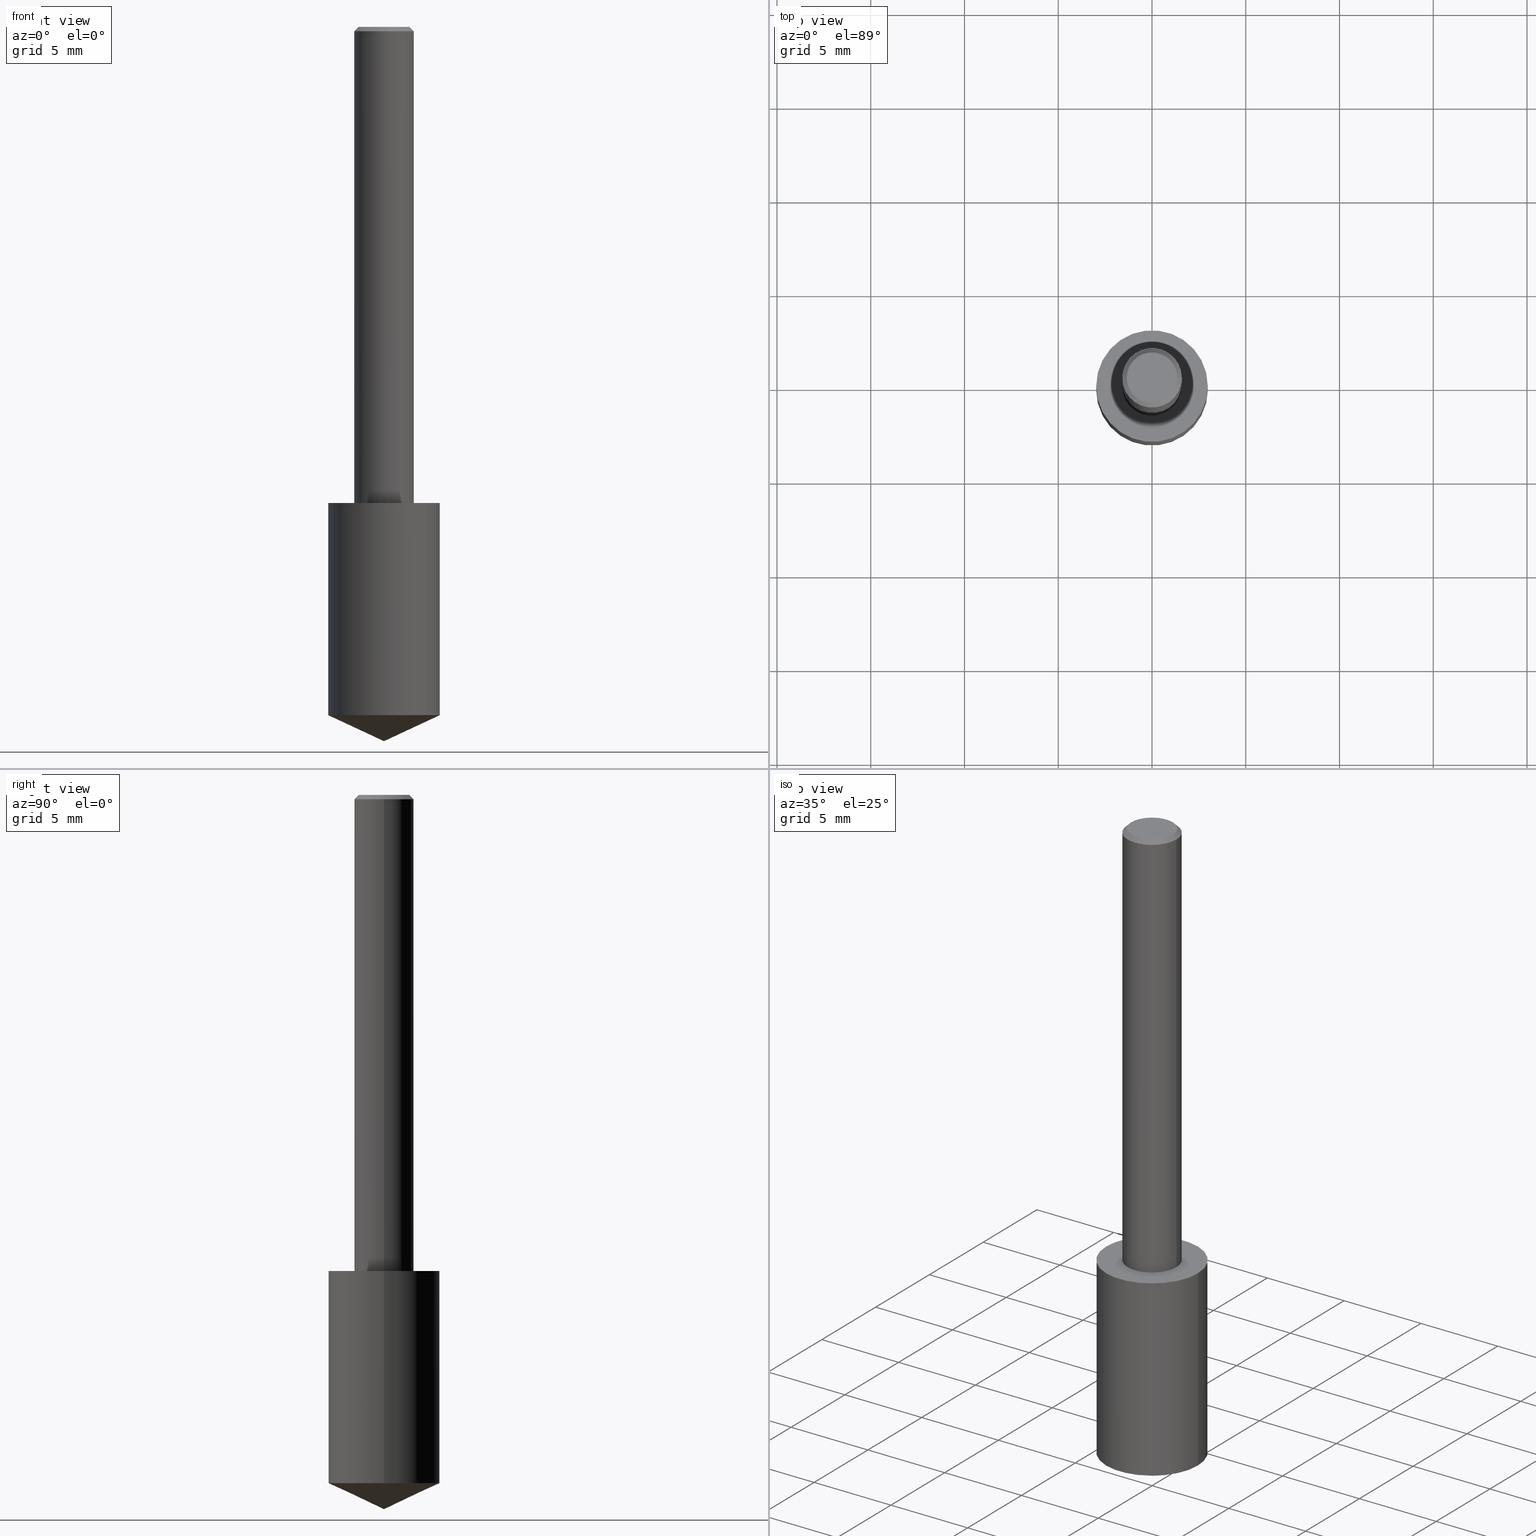
[diagram: canonical four-view strip — front | top / right | iso, engineering-drawing reading convention]
A machine part, canonical four-view strip (front | top / right | iso — engineering-drawing reading convention). The complete STEP part file that produces these views, byte-faithful:
ISO-10303-21;
HEADER;
FILE_DESCRIPTION (( 'STEP AP203' ),
    '1' );
FILE_NAME ('06161.STEP',
    '2024-04-30T18:32:09',
    ( '' ),
    ( '' ),
    'SwSTEP 2.0',
    'SolidWorks 2023',
    '' );
FILE_SCHEMA (( 'CONFIG_CONTROL_DESIGN' ));
ENDSEC;

DATA;
#1 = CARTESIAN_POINT ( 'NONE',  ( 3.668203209277704895E-29, -5.237222008264718177E-15, -1.500000000000000222 ) ) ;
#2 = PRODUCT_DEFINITION_SHAPE ( 'NONE', 'NONE',  #129 ) ;
#3 = CC_DESIGN_PERSON_AND_ORGANIZATION_ASSIGNMENT ( #73, #330, ( #88 ) ) ;
#4 = CLOSED_SHELL ( 'NONE', ( #138, #256, #248, #147, #314, #28 ) ) ;
#5 = EDGE_CURVE ( 'NONE', #132, #324, #148, .T. ) ;
#6 = ORIENTED_EDGE ( 'NONE', *, *, #158, .T. ) ;
#7 =( NAMED_UNIT ( * ) PLANE_ANGLE_UNIT ( ) SI_UNIT ( $, .RADIAN. ) );
#8 = CARTESIAN_POINT ( 'NONE',  ( 0.1171500000000000041, -4.309535416534092526E-15, -1.000000000000000222 ) ) ;
#9 = CC_DESIGN_APPROVAL ( #111, ( #323 ) ) ;
#10 =( NAMED_UNIT ( * ) SI_UNIT ( $, .STERADIAN. ) SOLID_ANGLE_UNIT ( ) );
#11 = EDGE_CURVE ( 'NONE', #120, #41, #193, .T. ) ;
#12 = DIRECTION ( 'NONE',  ( -2.445468806185136597E-29, 3.491481338843145583E-15, 1.000000000000000000 ) ) ;
#13 = VECTOR ( 'NONE', #217, 39.37007874015748854 ) ;
#14 = AXIS2_PLACEMENT_3D ( 'NONE', #166, #260, #339 ) ;
#15 = EDGE_LOOP ( 'NONE', ( #331, #253, #72 ) ) ;
#16 = APPROVAL_DATE_TIME ( #250, #143 ) ;
#17 = CARTESIAN_POINT ( 'NONE',  ( 2.292627005798582375E-31, -3.273263755165472650E-17, -0.009375000000000067307 ) ) ;
#18 = ORIENTED_EDGE ( 'NONE', *, *, #288, .T. ) ;
#19 = PERSON_AND_ORGANIZATION ( #303, #276 ) ;
#20 = ADVANCED_FACE ( 'NONE', ( #182 ), #271, .T. ) ;
#21 = DIRECTION ( 'NONE',  ( -2.445468806185136597E-29, 3.491481338843145583E-15, 1.000000000000000000 ) ) ;
#22 = ORIENTED_EDGE ( 'NONE', *, *, #82, .F. ) ;
#23 = DIRECTION ( 'NONE',  ( 1.000000000000000000, -6.982962677686266711E-15, 4.876176775795935793E-29 ) ) ;
#24 = CC_DESIGN_APPROVAL ( #143, ( #129 ) ) ;
#25 = LINE ( 'NONE', #56, #13 ) ;
#26 = FACE_OUTER_BOUND ( 'NONE', #92, .T. ) ;
#27 = DIRECTION ( 'NONE',  ( -2.438088387897960049E-29, 3.491481338843145188E-15, 1.000000000000000000 ) ) ;
#28 = ADVANCED_FACE ( 'NONE', ( #247 ), #198, .F. ) ;
#29 = SECURITY_CLASSIFICATION_LEVEL ( 'unclassified' ) ;
#30 = ORIENTED_EDGE ( 'NONE', *, *, #33, .F. ) ;
#31 = CC_DESIGN_APPROVAL ( #78, ( #88 ) ) ;
#32 = EDGE_LOOP ( 'NONE', ( #105, #196 ) ) ;
#33 = EDGE_CURVE ( 'NONE', #324, #267, #263, .T. ) ;
#34 = DIRECTION ( 'NONE',  ( -2.445468806185136597E-29, 3.491481338843145583E-15, 1.000000000000000000 ) ) ;
#35 = ADVANCED_FACE ( 'NONE', ( #110 ), #227, .F. ) ;
#36 = ORIENTED_EDGE ( 'NONE', *, *, #232, .F. ) ;
#37 = DIRECTION ( 'NONE',  ( 1.000000000000000000, -6.982962677686266711E-15, 0.000000000000000000 ) ) ;
#38 = DIRECTION ( 'NONE',  ( -2.445468806185136597E-29, 3.491481338843145583E-15, 1.000000000000000000 ) ) ;
#39 =( CONVERSION_BASED_UNIT ( 'INCH', #222 ) LENGTH_UNIT ( ) NAMED_UNIT ( #171 ) );
#40 =( LENGTH_UNIT ( ) NAMED_UNIT ( * ) SI_UNIT ( $, .METRE. ) );
#41 = VERTEX_POINT ( 'NONE', #167 ) ;
#42 = ORIENTED_EDGE ( 'NONE', *, *, #101, .F. ) ;
#43 = PLANE ( 'NONE',  #283 ) ;
#44 = CARTESIAN_POINT ( 'NONE',  ( 2.445468806185137438E-29, -3.491481338843146371E-15, -1.000000000000000222 ) ) ;
#45 = AXIS2_PLACEMENT_3D ( 'NONE', #83, #169, #112 ) ;
#46 = CALENDAR_DATE ( 2024, 30, 4 ) ;
#47 = DIRECTION ( 'NONE',  ( 1.000000000000000000, -6.982962677686266711E-15, 0.000000000000000000 ) ) ;
#48 = LINE ( 'NONE', #134, #233 ) ;
#49 = PERSON_AND_ORGANIZATION ( #303, #276 ) ;
#50 = LINE ( 'NONE', #161, #255 ) ;
#51 = CC_DESIGN_DATE_AND_TIME_ASSIGNMENT ( #207, #277, ( #129 ) ) ;
#52 = AXIS2_PLACEMENT_3D ( 'NONE', #44, #12, #47 ) ;
#53 = CARTESIAN_POINT ( 'NONE',  ( -7.487088864773345706E-50, 1.068957861474247695E-35, 3.061616997868395197E-21 ) ) ;
#54 = DESIGN_CONTEXT ( 'detailed design', #119, 'design' ) ;
#55 = ORIENTED_EDGE ( 'NONE', *, *, #5, .T. ) ;
#56 = CARTESIAN_POINT ( 'NONE',  ( 3.668203209277704895E-29, -5.237222008264718177E-15, -1.500000000000000222 ) ) ;
#57 = CONICAL_SURFACE ( 'NONE', #190, 0.06250000000000000000, 0.7853981633974447263 ) ;
#58 = APPLICATION_PROTOCOL_DEFINITION ( 'international standard', 'config_control_design', 1994, #103 ) ;
#59 = FACE_OUTER_BOUND ( 'NONE', #152, .T. ) ;
#60 = EDGE_CURVE ( 'NONE', #209, #326, #165, .T. ) ;
#61 = DIRECTION ( 'NONE',  ( 2.438088387897960049E-29, -3.491481338843145188E-15, -1.000000000000000000 ) ) ;
#62 = ORIENTED_EDGE ( 'NONE', *, *, #259, .T. ) ;
#63 = DIRECTION ( 'NONE',  ( -2.445468806185136597E-29, 3.491481338843145583E-15, 1.000000000000000000 ) ) ;
#64 = DIRECTION ( 'NONE',  ( 1.000000000000000000, -6.982962677686266711E-15, 0.000000000000000000 ) ) ;
#65 = DIRECTION ( 'NONE',  ( 2.438088387897960049E-29, -3.491481338843145188E-15, -1.000000000000000000 ) ) ;
#66 = ORIENTED_EDGE ( 'NONE', *, *, #220, .T. ) ;
#67 = LINE ( 'NONE', #77, #230 ) ;
#68 = COORDINATED_UNIVERSAL_TIME_OFFSET ( 5, 0, .BEHIND. ) ;
#69 = CIRCLE ( 'NONE', #237, 0.05312499999999999861 ) ;
#70 = ORIENTED_EDGE ( 'NONE', *, *, #75, .T. ) ;
#71 = DIRECTION ( 'NONE',  ( -2.445468806185136597E-29, 3.491481338843145583E-15, 1.000000000000000000 ) ) ;
#72 = ORIENTED_EDGE ( 'NONE', *, *, #60, .F. ) ;
#73 = PERSON_AND_ORGANIZATION ( #303, #276 ) ;
#74 = APPROVAL_STATUS ( 'not_yet_approved' ) ;
#75 = EDGE_CURVE ( 'NONE', #213, #209, #25, .T. ) ;
#76 = CARTESIAN_POINT ( 'NONE',  ( 3.668203209277704895E-29, -5.237222008264718177E-15, -1.500000000000000222 ) ) ;
#77 = CARTESIAN_POINT ( 'NONE',  ( -0.06250000000000006939, 4.440892098500631092E-16, -3.074334431409319267E-30 ) ) ;
#78 = APPROVAL ( #74, 'UNSPECIFIED' ) ;
#79 = CIRCLE ( 'NONE', #312, 0.05312499999999999861 ) ;
#80 = APPROVAL_PERSON_ORGANIZATION ( #153, #143, #246 ) ;
#81 = LINE ( 'NONE', #188, #113 ) ;
#82 = EDGE_CURVE ( 'NONE', #135, #132, #69, .T. ) ;
#83 = CARTESIAN_POINT ( 'NONE',  ( 2.445468806185137438E-29, -3.491481338843146371E-15, -1.000000000000000222 ) ) ;
#84 = DIRECTION ( 'NONE',  ( 1.000000000000000000, -6.982962677686266711E-15, 4.876176628004948512E-29 ) ) ;
#85 = CARTESIAN_POINT ( 'NONE',  ( 3.534612280796804494E-29, -5.046489567658612481E-15, -1.445372057847142067 ) ) ;
#86 = FACE_OUTER_BOUND ( 'NONE', #221, .T. ) ;
#87 = CARTESIAN_POINT ( 'NONE',  ( 0.06250000000000012490, -3.927916506198539224E-15, -1.000000000000000222 ) ) ;
#88 = PRODUCT_DEFINITION_FORMATION_WITH_SPECIFIED_SOURCE ( 'ANY', '', #223, .NOT_KNOWN. ) ;
#89 = ORIENTED_EDGE ( 'NONE', *, *, #220, .F. ) ;
#90 = CALENDAR_DATE ( 2024, 30, 4 ) ;
#91 = DIRECTION ( 'NONE',  ( -0.7071067811865450192, 2.468850131082230634E-15, -0.7071067811865500152 ) ) ;
#92 = EDGE_LOOP ( 'NONE', ( #274, #281, #249, #30 ) ) ;
#93 = PERSON_AND_ORGANIZATION ( #303, #276 ) ;
#94 = ORIENTED_EDGE ( 'NONE', *, *, #232, .T. ) ;
#95 = CARTESIAN_POINT ( 'NONE',  ( 2.445468806185137438E-29, -3.491481338843146371E-15, -1.000000000000000222 ) ) ;
#96 = DIRECTION ( 'NONE',  ( 2.445468806185136597E-29, -3.491481338843145583E-15, -1.000000000000000000 ) ) ;
#97 = CIRCLE ( 'NONE', #140, 0.1171500000000000041 ) ;
#98 = ORIENTED_EDGE ( 'NONE', *, *, #60, .T. ) ;
#99 = DATE_TIME_ROLE ( 'classification_date' ) ;
#100 = CARTESIAN_POINT ( 'NONE',  ( 0.000000000000000000, 0.000000000000000000, 0.000000000000000000 ) ) ;
#101 = EDGE_CURVE ( 'NONE', #213, #326, #104, .T. ) ;
#102 = APPROVAL_DATE_TIME ( #206, #111 ) ;
#103 = APPLICATION_CONTEXT ( 'configuration controlled 3d designs of mechanical parts and assemblies' ) ;
#104 = LINE ( 'NONE', #76, #208 ) ;
#105 = ORIENTED_EDGE ( 'NONE', *, *, #11, .F. ) ;
#106 = AXIS2_PLACEMENT_3D ( 'NONE', #316, #38, #329 ) ;
#107 = CC_DESIGN_DATE_AND_TIME_ASSIGNMENT ( #229, #99, ( #323 ) ) ;
#108 = EDGE_LOOP ( 'NONE', ( #117, #94 ) ) ;
#109 = CONICAL_SURFACE ( 'NONE', #191, 84.42940631927412198, 1.134464013796314896 ) ;
#110 = FACE_OUTER_BOUND ( 'NONE', #108, .T. ) ;
#111 = APPROVAL ( #183, 'UNSPECIFIED' ) ;
#112 = DIRECTION ( 'NONE',  ( 1.000000000000000000, -6.982962677686266711E-15, 0.000000000000000000 ) ) ;
#113 = VECTOR ( 'NONE', #284, 39.37007874015748143 ) ;
#114 = LOCAL_TIME ( 14, 32, 9.000000000000000000, #257 ) ;
#115 = DIRECTION ( 'NONE',  ( -2.445468806185136597E-29, 3.491481338843145583E-15, 1.000000000000000000 ) ) ;
#116 = PRODUCT_RELATED_PRODUCT_CATEGORY ( 'detail', '', ( #223 ) ) ;
#117 = ORIENTED_EDGE ( 'NONE', *, *, #309, .T. ) ;
#118 = CARTESIAN_POINT ( 'NONE',  ( 0.06250000000000000000, -4.691678049070464390E-16, -0.009375000000000067307 ) ) ;
#119 = APPLICATION_CONTEXT ( 'configuration controlled 3d designs of mechanical parts and assemblies' ) ;
#120 = VERTEX_POINT ( 'NONE', #87 ) ;
#121 = COORDINATED_UNIVERSAL_TIME_OFFSET ( 5, 0, .BEHIND. ) ;
#122 = AXIS2_PLACEMENT_3D ( 'NONE', #17, #125, #302 ) ;
#123 = ORIENTED_EDGE ( 'NONE', *, *, #189, .F. ) ;
#124 = PERSON_AND_ORGANIZATION ( #303, #276 ) ;
#125 = DIRECTION ( 'NONE',  ( -2.445468806185136597E-29, 3.491481338843145583E-15, 1.000000000000000000 ) ) ;
#126 = ORIENTED_EDGE ( 'NONE', *, *, #285, .F. ) ;
#127 = APPROVAL_ROLE ( '' ) ;
#128 = VERTEX_POINT ( 'NONE', #317 ) ;
#129 = PRODUCT_DEFINITION ( 'UNKNOWN', '', #88, #54 ) ;
#130 = CIRCLE ( 'NONE', #184, 0.1171500000000000041 ) ;
#131 = DIRECTION ( 'NONE',  ( 1.000000000000000000, -6.982962677686266711E-15, 4.876176775795935793E-29 ) ) ;
#132 = VERTEX_POINT ( 'NONE', #141 ) ;
#133 = DIRECTION ( 'NONE',  ( 1.000000000000000000, -6.982962677686265922E-15, 4.876176775795935793E-29 ) ) ;
#134 = CARTESIAN_POINT ( 'NONE',  ( 0.06250000000000006939, -4.364351673553921624E-16, 3.047610484872463374E-30 ) ) ;
#135 = VERTEX_POINT ( 'NONE', #289 ) ;
#136 = FACE_OUTER_BOUND ( 'NONE', #15, .T. ) ;
#137 = COORDINATED_UNIVERSAL_TIME_OFFSET ( 5, 0, .BEHIND. ) ;
#138 = ADVANCED_FACE ( 'NONE', ( #59 ), #57, .T. ) ;
#139 = CYLINDRICAL_SURFACE ( 'NONE', #241, 0.06250000000000006939 ) ;
#140 = AXIS2_PLACEMENT_3D ( 'NONE', #85, #197, #37 ) ;
#141 = CARTESIAN_POINT ( 'NONE',  ( -0.05312499999999999861, 3.873362110279099094E-16, 3.061616995216862494E-21 ) ) ;
#142 = ORIENTED_EDGE ( 'NONE', *, *, #168, .F. ) ;
#143 = APPROVAL ( #265, 'UNSPECIFIED' ) ;
#144 = VECTOR ( 'NONE', #91, 39.37007874015748143 ) ;
#145 = CIRCLE ( 'NONE', #238, 0.06250000000000000000 ) ;
#146 = DIRECTION ( 'NONE',  ( 1.000000000000000000, -6.982962677686266711E-15, 0.000000000000000000 ) ) ;
#147 = ADVANCED_FACE ( 'NONE', ( #26 ), #139, .T. ) ;
#148 = LINE ( 'NONE', #292, #144 ) ;
#149 = CARTESIAN_POINT ( 'NONE',  ( 0.000000000000000000, 0.000000000000000000, 0.000000000000000000 ) ) ;
#150 = AXIS2_PLACEMENT_3D ( 'NONE', #328, #115, #131 ) ;
#151 = DIRECTION ( 'NONE',  ( 1.000000000000000000, 0.000000000000000000, 0.000000000000000000 ) ) ;
#152 = EDGE_LOOP ( 'NONE', ( #22, #62, #18, #294 ) ) ;
#153 = PERSON_AND_ORGANIZATION ( #303, #276 ) ;
#154 = ORIENTED_EDGE ( 'NONE', *, *, #235, .F. ) ;
#155 = PERSON_AND_ORGANIZATION ( #303, #276 ) ;
#156 = DIRECTION ( 'NONE',  ( -2.445468806185136597E-29, 3.491481338843145583E-15, 1.000000000000000000 ) ) ;
#157 = ORIENTED_EDGE ( 'NONE', *, *, #33, .T. ) ;
#158 = EDGE_CURVE ( 'NONE', #41, #324, #67, .T. ) ;
#159 = DATE_AND_TIME ( #332, #251 ) ;
#160 = CIRCLE ( 'NONE', #14, 0.06250000000000012490 ) ;
#161 = CARTESIAN_POINT ( 'NONE',  ( -0.1171500000000000041, -2.659080523900189172E-15, -1.000000000000000222 ) ) ;
#162 = AXIS2_PLACEMENT_3D ( 'NONE', #95, #71, #273 ) ;
#163 = CC_DESIGN_SECURITY_CLASSIFICATION ( #323, ( #88 ) ) ;
#164 = CARTESIAN_POINT ( 'NONE',  ( 3.259655429354990781E-29, -2.325519753839192376E-15, -1.000000000000000222 ) ) ;
#165 = CIRCLE ( 'NONE', #106, 0.1171500000000000041 ) ;
#166 = CARTESIAN_POINT ( 'NONE',  ( 2.445468806185137438E-29, -3.491481338843146371E-15, -1.000000000000000222 ) ) ;
#167 = CARTESIAN_POINT ( 'NONE',  ( -0.06250000000000012490, -1.318017778347335489E-15, -1.000000000000000222 ) ) ;
#168 = EDGE_CURVE ( 'NONE', #132, #135, #79, .T. ) ;
#169 = DIRECTION ( 'NONE',  ( -2.445468806185136597E-29, 3.491481338843145583E-15, 1.000000000000000000 ) ) ;
#170 = FACE_OUTER_BOUND ( 'NONE', #310, .T. ) ;
#171 = DIMENSIONAL_EXPONENTS ( 1.000000000000000000, 0.000000000000000000, 0.000000000000000000, 0.000000000000000000, 0.000000000000000000, 0.000000000000000000, 0.000000000000000000 ) ;
#172 = CARTESIAN_POINT ( 'NONE',  ( 2.445468806185136877E-29, -3.491481338843145977E-15, -1.000000000000000222 ) ) ;
#173 = VERTEX_POINT ( 'NONE', #8 ) ;
#174 = DIRECTION ( 'NONE',  ( -2.445468806185136877E-29, 3.491481338843145188E-15, 1.000000000000000000 ) ) ;
#175 = CC_DESIGN_PERSON_AND_ORGANIZATION_ASSIGNMENT ( #49, #300, ( #88 ) ) ;
#176 = ORIENTED_EDGE ( 'NONE', *, *, #309, .F. ) ;
#177 = DIRECTION ( 'NONE',  ( -2.445468806185136597E-29, 3.491481338843145583E-15, 1.000000000000000000 ) ) ;
#178 = ORIENTED_EDGE ( 'NONE', *, *, #82, .T. ) ;
#179 = CALENDAR_DATE ( 2024, 30, 4 ) ;
#180 = AXIS2_PLACEMENT_3D ( 'NONE', #192, #177, #146 ) ;
#181 = CC_DESIGN_PERSON_AND_ORGANIZATION_ASSIGNMENT ( #124, #306, ( #129 ) ) ;
#182 = FACE_OUTER_BOUND ( 'NONE', #295, .T. ) ;
#183 = APPROVAL_STATUS ( 'not_yet_approved' ) ;
#184 = AXIS2_PLACEMENT_3D ( 'NONE', #262, #21, #278 ) ;
#185 = SHAPE_DEFINITION_REPRESENTATION ( #2, #334 ) ;
#186 = CLOSED_SHELL ( 'NONE', ( #338, #315, #226, #20, #35 ) ) ;
#187 = AXIS2_PLACEMENT_3D ( 'NONE', #149, #243, #151 ) ;
#188 = CARTESIAN_POINT ( 'NONE',  ( 0.1171500000000000041, -4.309535416534092526E-15, -1.000000000000000222 ) ) ;
#189 = EDGE_CURVE ( 'NONE', #326, #173, #81, .T. ) ;
#190 = AXIS2_PLACEMENT_3D ( 'NONE', #212, #96, #335 ) ;
#191 = AXIS2_PLACEMENT_3D ( 'NONE', #282, #156, #311 ) ;
#192 = CARTESIAN_POINT ( 'NONE',  ( -9.261009624683002666E-28, 1.322226732217803884E-13, 37.87007874015748143 ) ) ;
#193 = CIRCLE ( 'NONE', #162, 0.06250000000000012490 ) ;
#194 = MECHANICAL_CONTEXT ( 'NONE', #103, 'mechanical' ) ;
#195 =( GEOMETRIC_REPRESENTATION_CONTEXT ( 3 ) GLOBAL_UNCERTAINTY_ASSIGNED_CONTEXT ( ( #298 ) ) GLOBAL_UNIT_ASSIGNED_CONTEXT ( ( #39, #7, #10 ) ) REPRESENTATION_CONTEXT ( 'NONE', 'WORKASPACE' ) );
#196 = ORIENTED_EDGE ( 'NONE', *, *, #203, .F. ) ;
#197 = DIRECTION ( 'NONE',  ( -2.445468806185136597E-29, 3.491481338843145583E-15, 1.000000000000000000 ) ) ;
#198 = PLANE ( 'NONE',  #215 ) ;
#199 = ORIENTED_EDGE ( 'NONE', *, *, #285, .T. ) ;
#200 = MANIFOLD_SOLID_BREP ( 'Body-Move/Copy2[2]', #4 ) ;
#201 = PERSON_AND_ORGANIZATION_ROLE ( 'classification_officer' ) ;
#202 = CARTESIAN_POINT ( 'NONE',  ( 2.445468806185137438E-29, -3.491481338843146371E-15, -1.000000000000000222 ) ) ;
#203 = EDGE_CURVE ( 'NONE', #41, #120, #160, .T. ) ;
#204 = EDGE_LOOP ( 'NONE', ( #224, #142, #55, #157 ) ) ;
#205 = DIRECTION ( 'NONE',  ( -1.000000000000000000, 6.982962677686265922E-15, -4.876176775795935793E-29 ) ) ;
#206 = DATE_AND_TIME ( #46, #114 ) ;
#207 = DATE_AND_TIME ( #327, #305 ) ;
#208 = VECTOR ( 'NONE', #321, 39.37007874015748854 ) ;
#209 = VERTEX_POINT ( 'NONE', #236 ) ;
#210 = CC_DESIGN_PERSON_AND_ORGANIZATION_ASSIGNMENT ( #155, #218, ( #223 ) ) ;
#211 = LOCAL_TIME ( 14, 32, 9.000000000000000000, #304 ) ;
#212 = CARTESIAN_POINT ( 'NONE',  ( 2.292627005798582375E-31, -3.273263755165472650E-17, -0.009375000000000067307 ) ) ;
#213 = VERTEX_POINT ( 'NONE', #1 ) ;
#214 = DIRECTION ( 'NONE',  ( -1.000000000000000000, 6.982962677686265922E-15, -4.876176775795935793E-29 ) ) ;
#215 = AXIS2_PLACEMENT_3D ( 'NONE', #252, #65, #214 ) ;
#216 = AXIS2_PLACEMENT_3D ( 'NONE', #291, #264, #268 ) ;
#217 = DIRECTION ( 'NONE',  ( -0.9063077870366501587, 7.915267918739014631E-15, 0.4226182617406987752 ) ) ;
#218 = PERSON_AND_ORGANIZATION_ROLE ( 'design_owner' ) ;
#219 = CARTESIAN_POINT ( 'NONE',  ( -0.06250000000000000000, -1.318017778347336672E-15, -0.009375000000000067307 ) ) ;
#220 = EDGE_CURVE ( 'NONE', #209, #128, #50, .T. ) ;
#221 = EDGE_LOOP ( 'NONE', ( #42, #70, #126 ) ) ;
#222 = LENGTH_MEASURE_WITH_UNIT ( LENGTH_MEASURE( 0.02539999999999999897 ), #40 );
#223 = PRODUCT ( '06161', '06161', '', ( #194 ) ) ;
#224 = ORIENTED_EDGE ( 'NONE', *, *, #259, .F. ) ;
#225 = CARTESIAN_POINT ( 'NONE',  ( 2.292627005798582375E-31, -3.273263755165472650E-17, -0.009375000000000067307 ) ) ;
#226 = ADVANCED_FACE ( 'NONE', ( #136 ), #109, .T. ) ;
#227 = PLANE ( 'NONE',  #307 ) ;
#228 = EDGE_LOOP ( 'NONE', ( #234, #178 ) ) ;
#229 = DATE_AND_TIME ( #179, #211 ) ;
#230 = VECTOR ( 'NONE', #318, 39.37007874015748143 ) ;
#231 = DIRECTION ( 'NONE',  ( -2.445468806185136877E-29, 3.491481338843145188E-15, 1.000000000000000000 ) ) ;
#232 = EDGE_CURVE ( 'NONE', #128, #173, #130, .T. ) ;
#233 = VECTOR ( 'NONE', #174, 39.37007874015748143 ) ;
#234 = ORIENTED_EDGE ( 'NONE', *, *, #168, .T. ) ;
#235 = EDGE_CURVE ( 'NONE', #120, #267, #48, .T. ) ;
#236 = CARTESIAN_POINT ( 'NONE',  ( -0.1171499999999999764, -4.214088752715654492E-15, -1.445372057847142067 ) ) ;
#237 = AXIS2_PLACEMENT_3D ( 'NONE', #53, #34, #337 ) ;
#238 = AXIS2_PLACEMENT_3D ( 'NONE', #225, #322, #296 ) ;
#239 = DIRECTION ( 'NONE',  ( 0.7071067811865450192, -7.319954787623246579E-15, -0.7071067811865500152 ) ) ;
#240 = CARTESIAN_POINT ( 'NONE',  ( -7.487088864773345706E-50, 1.068957861474247695E-35, 3.061616997868395197E-21 ) ) ;
#241 = AXIS2_PLACEMENT_3D ( 'NONE', #100, #63, #23 ) ;
#242 = APPROVAL_PERSON_ORGANIZATION ( #19, #111, #275 ) ;
#243 = DIRECTION ( 'NONE',  ( 0.000000000000000000, 0.000000000000000000, 1.000000000000000000 ) ) ;
#244 = ORIENTED_EDGE ( 'NONE', *, *, #11, .T. ) ;
#245 = FACE_OUTER_BOUND ( 'NONE', #204, .T. ) ;
#246 = APPROVAL_ROLE ( '' ) ;
#247 = FACE_OUTER_BOUND ( 'NONE', #228, .T. ) ;
#248 = ADVANCED_FACE ( 'NONE', ( #270 ), #43, .F. ) ;
#249 = ORIENTED_EDGE ( 'NONE', *, *, #235, .T. ) ;
#250 = DATE_AND_TIME ( #90, #266 ) ;
#251 = LOCAL_TIME ( 14, 32, 9.000000000000000000, #68 ) ;
#252 = CARTESIAN_POINT ( 'NONE',  ( -3.743544432386672853E-50, 5.344789307371238476E-36, 1.530808498934197599E-21 ) ) ;
#253 = ORIENTED_EDGE ( 'NONE', *, *, #101, .T. ) ;
#254 = FACE_OUTER_BOUND ( 'NONE', #299, .T. ) ;
#255 = VECTOR ( 'NONE', #231, 39.37007874015748143 ) ;
#256 = ADVANCED_FACE ( 'NONE', ( #254 ), #301, .T. ) ;
#257 = COORDINATED_UNIVERSAL_TIME_OFFSET ( 5, 0, .BEHIND. ) ;
#258 = APPROVAL_DATE_TIME ( #159, #78 ) ;
#259 = EDGE_CURVE ( 'NONE', #135, #267, #279, .T. ) ;
#260 = DIRECTION ( 'NONE',  ( -2.445468806185136597E-29, 3.491481338843145583E-15, 1.000000000000000000 ) ) ;
#261 = APPROVAL_PERSON_ORGANIZATION ( #336, #78, #127 ) ;
#262 = CARTESIAN_POINT ( 'NONE',  ( 2.445468806185136877E-29, -3.491481338843145977E-15, -1.000000000000000222 ) ) ;
#263 = CIRCLE ( 'NONE', #122, 0.06250000000000000000 ) ;
#264 = DIRECTION ( 'NONE',  ( 2.445468806185136597E-29, -3.491481338843145583E-15, -1.000000000000000000 ) ) ;
#265 = APPROVAL_STATUS ( 'not_yet_approved' ) ;
#266 = LOCAL_TIME ( 14, 32, 9.000000000000000000, #121 ) ;
#267 = VERTEX_POINT ( 'NONE', #118 ) ;
#268 = DIRECTION ( 'NONE',  ( -1.000000000000000000, 6.982962677686266711E-15, 0.000000000000000000 ) ) ;
#269 = APPLICATION_PROTOCOL_DEFINITION ( 'international standard', 'config_control_design', 1994, #119 ) ;
#270 = FACE_OUTER_BOUND ( 'NONE', #32, .T. ) ;
#271 = CYLINDRICAL_SURFACE ( 'NONE', #52, 0.1171500000000000041 ) ;
#272 = ORIENTED_EDGE ( 'NONE', *, *, #288, .F. ) ;
#273 = DIRECTION ( 'NONE',  ( 1.000000000000000000, -6.982962677686264344E-15, 0.000000000000000000 ) ) ;
#274 = ORIENTED_EDGE ( 'NONE', *, *, #158, .F. ) ;
#275 = APPROVAL_ROLE ( '' ) ;
#276 = ORGANIZATION ( 'UNSPECIFIED', 'UNSPECIFIED', '' ) ;
#277 = DATE_TIME_ROLE ( 'creation_date' ) ;
#278 = DIRECTION ( 'NONE',  ( 1.000000000000000000, -6.982962677686266711E-15, 0.000000000000000000 ) ) ;
#279 = LINE ( 'NONE', #319, #280 ) ;
#280 = VECTOR ( 'NONE', #239, 39.37007874015748143 ) ;
#281 = ORIENTED_EDGE ( 'NONE', *, *, #203, .T. ) ;
#282 = CARTESIAN_POINT ( 'NONE',  ( -9.261009624683002666E-28, 1.322226732217803884E-13, 37.87007874015748143 ) ) ;
#283 = AXIS2_PLACEMENT_3D ( 'NONE', #202, #27, #133 ) ;
#284 = DIRECTION ( 'NONE',  ( -2.445468806185136877E-29, 3.491481338843145188E-15, 1.000000000000000000 ) ) ;
#285 = EDGE_CURVE ( 'NONE', #326, #209, #97, .T. ) ;
#286 = CONICAL_SURFACE ( 'NONE', #216, 0.06250000000000000000, 0.7853981633974447263 ) ;
#287 = DIRECTION ( 'NONE',  ( -2.445468806185136597E-29, 3.491481338843145583E-15, 1.000000000000000000 ) ) ;
#288 = EDGE_CURVE ( 'NONE', #267, #324, #145, .T. ) ;
#289 = CARTESIAN_POINT ( 'NONE',  ( 0.05312499999999999861, -4.129888592719939842E-16, 3.061617000609493422E-21 ) ) ;
#290 = DIRECTION ( 'NONE',  ( -2.445468806185136597E-29, 3.491481338843145583E-15, 1.000000000000000000 ) ) ;
#291 = CARTESIAN_POINT ( 'NONE',  ( 2.292627005798582375E-31, -3.273263755165472650E-17, -0.009375000000000067307 ) ) ;
#292 = CARTESIAN_POINT ( 'NONE',  ( -0.06250000000000000000, 4.037025298037369491E-16, -0.009375000000000067307 ) ) ;
#293 = AXIS2_PLACEMENT_3D ( 'NONE', #172, #290, #64 ) ;
#294 = ORIENTED_EDGE ( 'NONE', *, *, #5, .F. ) ;
#295 = EDGE_LOOP ( 'NONE', ( #89, #98, #340, #36 ) ) ;
#296 = DIRECTION ( 'NONE',  ( 1.000000000000000000, -6.982962677686266711E-15, 0.000000000000000000 ) ) ;
#297 = CC_DESIGN_PERSON_AND_ORGANIZATION_ASSIGNMENT ( #93, #201, ( #323 ) ) ;
#298 = UNCERTAINTY_MEASURE_WITH_UNIT (LENGTH_MEASURE( 1.000000000000000082E-05 ), #39, 'distance_accuracy_value', 'NONE');
#299 = EDGE_LOOP ( 'NONE', ( #244, #6, #272, #154 ) ) ;
#300 = PERSON_AND_ORGANIZATION_ROLE ( 'creator' ) ;
#301 = CYLINDRICAL_SURFACE ( 'NONE', #150, 0.06250000000000006939 ) ;
#302 = DIRECTION ( 'NONE',  ( 1.000000000000000000, -6.982962677686266711E-15, 0.000000000000000000 ) ) ;
#303 = PERSON ( 'UNSPECIFIED', 'UNSPECIFIED', 'UNSPECIFIED', ('UNSPECIFIED'), ('UNSPECIFIED'), ('UNSPECIFIED') ) ;
#304 = COORDINATED_UNIVERSAL_TIME_OFFSET ( 5, 0, .BEHIND. ) ;
#305 = LOCAL_TIME ( 14, 32, 9.000000000000000000, #137 ) ;
#306 = PERSON_AND_ORGANIZATION_ROLE ( 'creator' ) ;
#307 = AXIS2_PLACEMENT_3D ( 'NONE', #164, #61, #205 ) ;
#308 = MANIFOLD_SOLID_BREP ( 'Body-Move/Copy2[1]', #186 ) ;
#309 = EDGE_CURVE ( 'NONE', #173, #128, #313, .T. ) ;
#310 = EDGE_LOOP ( 'NONE', ( #199, #66, #176, #123 ) ) ;
#311 = DIRECTION ( 'NONE',  ( 1.000000000000000000, -6.982962677686266711E-15, 0.000000000000000000 ) ) ;
#312 = AXIS2_PLACEMENT_3D ( 'NONE', #240, #287, #84 ) ;
#313 = CIRCLE ( 'NONE', #293, 0.1171500000000000041 ) ;
#314 = ADVANCED_FACE ( 'NONE', ( #245 ), #286, .T. ) ;
#315 = ADVANCED_FACE ( 'NONE', ( #86 ), #333, .T. ) ;
#316 = CARTESIAN_POINT ( 'NONE',  ( 3.534612280796804494E-29, -5.046489567658612481E-15, -1.445372057847142067 ) ) ;
#317 = CARTESIAN_POINT ( 'NONE',  ( -0.1171500000000000041, -3.436584638307922029E-15, -1.000000000000000222 ) ) ;
#318 = DIRECTION ( 'NONE',  ( -2.445468806185136877E-29, 3.491481338843145188E-15, 1.000000000000000000 ) ) ;
#319 = CARTESIAN_POINT ( 'NONE',  ( 0.06250000000000000000, -4.615137624123754923E-16, -0.009375000000000067307 ) ) ;
#320 = CYLINDRICAL_SURFACE ( 'NONE', #45, 0.1171500000000000041 ) ;
#321 = DIRECTION ( 'NONE',  ( 0.9063077870366501587, -4.853149677051383523E-15, 0.4226182617406987752 ) ) ;
#322 = DIRECTION ( 'NONE',  ( -2.445468806185136597E-29, 3.491481338843145583E-15, 1.000000000000000000 ) ) ;
#323 = SECURITY_CLASSIFICATION ( '', '', #29 ) ;
#324 = VERTEX_POINT ( 'NONE', #219 ) ;
#325 = CARTESIAN_POINT ( 'NONE',  ( 0.1171499999999999764, -5.864543645349557452E-15, -1.445372057847142067 ) ) ;
#326 = VERTEX_POINT ( 'NONE', #325 ) ;
#327 = CALENDAR_DATE ( 2024, 30, 4 ) ;
#328 = CARTESIAN_POINT ( 'NONE',  ( 0.000000000000000000, 0.000000000000000000, 0.000000000000000000 ) ) ;
#329 = DIRECTION ( 'NONE',  ( 1.000000000000000000, -6.982962677686266711E-15, 0.000000000000000000 ) ) ;
#330 = PERSON_AND_ORGANIZATION_ROLE ( 'design_supplier' ) ;
#331 = ORIENTED_EDGE ( 'NONE', *, *, #75, .F. ) ;
#332 = CALENDAR_DATE ( 2024, 30, 4 ) ;
#333 = CONICAL_SURFACE ( 'NONE', #180, 84.42940631927412198, 1.134464013796314896 ) ;
#334 = ADVANCED_BREP_SHAPE_REPRESENTATION ( '06161', ( #308, #200, #187 ), #195 ) ;
#335 = DIRECTION ( 'NONE',  ( -1.000000000000000000, 6.982962677686266711E-15, 0.000000000000000000 ) ) ;
#336 = PERSON_AND_ORGANIZATION ( #303, #276 ) ;
#337 = DIRECTION ( 'NONE',  ( 1.000000000000000000, -6.982962677686266711E-15, 4.876176628004948512E-29 ) ) ;
#338 = ADVANCED_FACE ( 'NONE', ( #170 ), #320, .T. ) ;
#339 = DIRECTION ( 'NONE',  ( 1.000000000000000000, -6.982962677686264344E-15, 0.000000000000000000 ) ) ;
#340 = ORIENTED_EDGE ( 'NONE', *, *, #189, .T. ) ;
ENDSEC;
END-ISO-10303-21;
